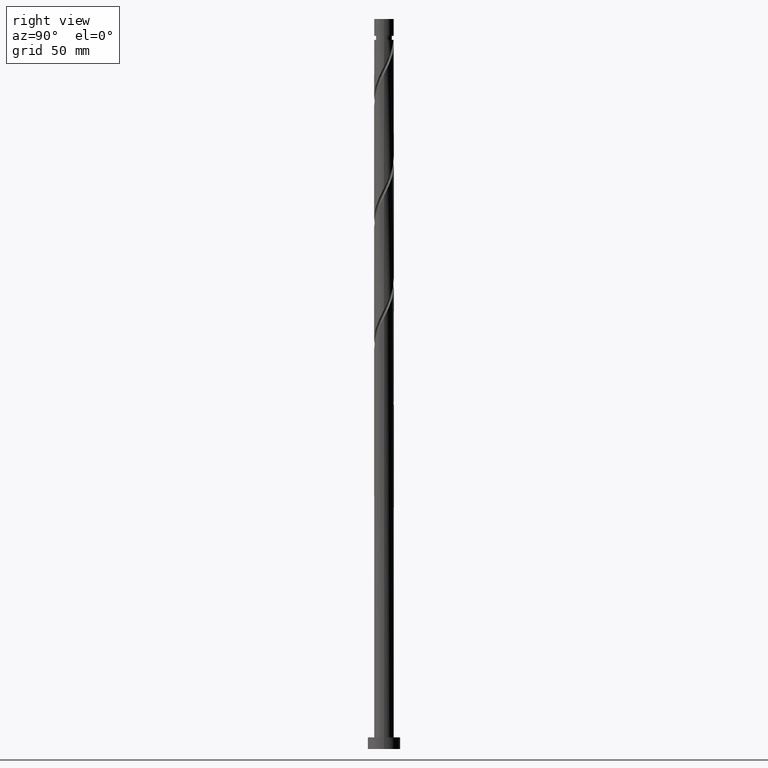
[diagram: clean part render]
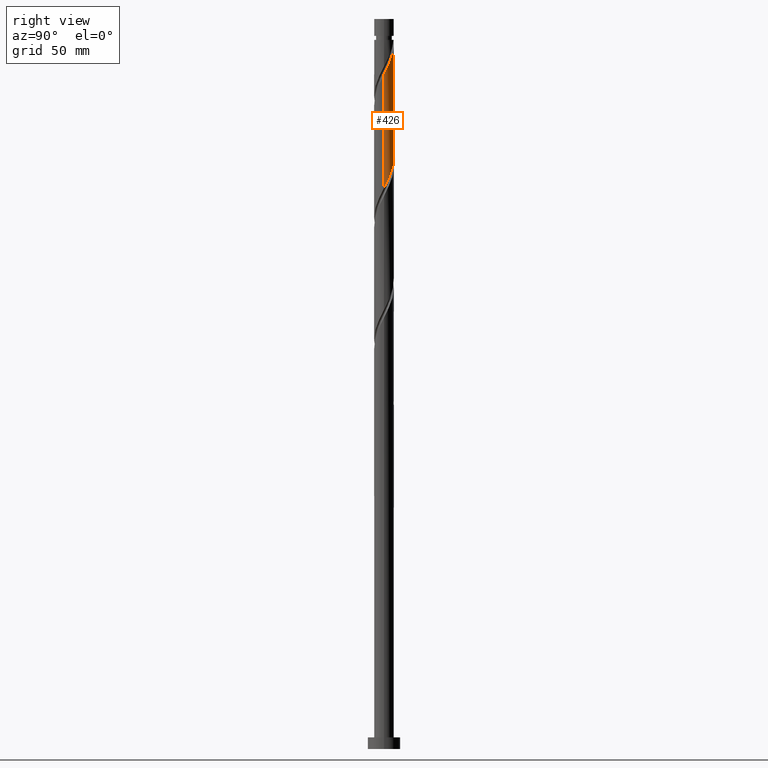
[diagram: same view with one face highlighted and labeled with its STEP entity id]
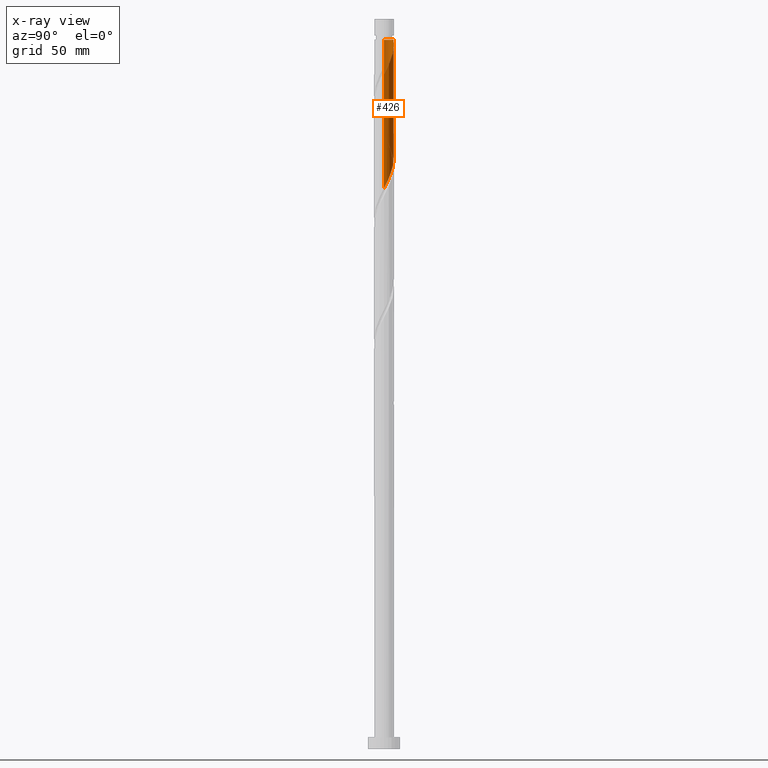
[diagram: x-ray of the same camera — body ghosted, the highlighted face saturated]
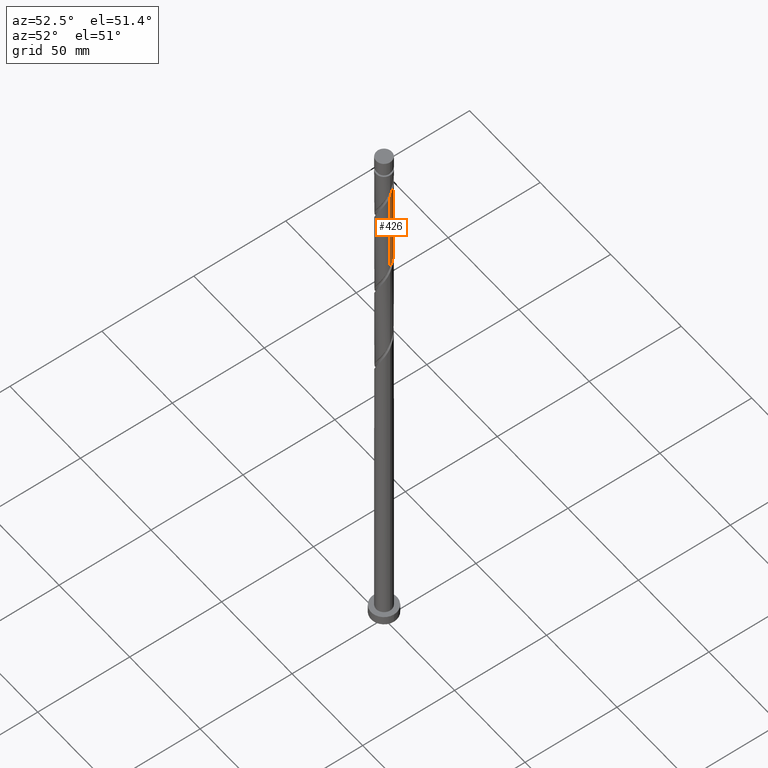
[diagram: same view with one face highlighted and labeled with its STEP entity id]
A machine part, right view. The second image highlights one B-rep face of the part: STEP entity #426.
The next image is the same camera in x-ray: the body ghosted, the highlighted face saturated — about 0% of this face is hidden behind the body in this view.
A second angle (auxiliary view) of the same face is appended — the face is thin or edge-on in the first view.
In plain terms, the highlighted cylindrical surface (edge-blend (fillet) strip) has radius 4.25 mm, axis along (-0, -0, -1).
Its self-contained STEP definition (entity closure, byte-faithful):
#3 = CARTESIAN_POINT ( 'NONE',  ( -2.729018282467836620, 3.258060652283240710, 260.9937838819315061 ) ) ;
#15 = CARTESIAN_POINT ( 'NONE',  ( -3.872380050524492301, 1.751334560927727102, 264.7437838819315061 ) ) ;
#21 = CIRCLE ( 'NONE', #1414, 4.249999999999974243 ) ;
#30 = VERTEX_POINT ( 'NONE', #563 ) ;
#42 = EDGE_LOOP ( 'NONE', ( #907, #793, #375, #1238, #468 ) ) ;
#114 = DIRECTION ( 'NONE',  ( -0.000000000000000000, -0.000000000000000000, -1.000000000000000000 ) ) ;
#134 = CARTESIAN_POINT ( 'NONE',  ( -2.361923010402210199, 3.565547165210043445, 260.0562838819315061 ) ) ;
#171 = CARTESIAN_POINT ( 'NONE',  ( 4.001728767771656869, 1.509295783997805840, 245.0562838819315346 ) ) ;
#179 = CARTESIAN_POINT ( 'NONE',  ( -0.8457393215406289189, 4.165000000000002700, 305.9937838819314493 ) ) ;
#207 = CARTESIAN_POINT ( 'NONE',  ( 1.935609397200013237, 3.783637966490855931, 300.3687838819315061 ) ) ;
#289 = CARTESIAN_POINT ( 'NONE',  ( 4.249999999999999112, 0.05113981295715052527, 242.1436636480626134 ) ) ;
#299 = VERTEX_POINT ( 'NONE', #709 ) ;
#303 = CARTESIAN_POINT ( 'NONE',  ( 0.3764565268566672507, 4.260291935747106074, 254.4312838819314777 ) ) ;
#314 = CARTESIAN_POINT ( 'NONE',  ( -4.069708064252891333, 1.315022116224591642, 265.6812838819314493 ) ) ;
#317 =( BOUNDED_CURVE ( )  B_SPLINE_CURVE ( 2, ( #1776, #1343, #717, #314, #15, #757, #612, #1322, #3, #134, #440, #601, #873, #1197, #899, #303, #1032, #1912, #1627, #725, #1312, #881, #574, #1500, #1662, #171, #592, #323, #1354, #289, #1466 ),
 .UNSPECIFIED., .F., .T. ) 
 B_SPLINE_CURVE_WITH_KNOTS ( ( 3, 2, 2, 2, 2, 2, 2, 2, 2, 2, 2, 2, 2, 2, 2, 3 ),
 ( 0.4295303401299219725, 0.4375000000000000000, 0.4464285714285714524, 0.4553571428571428492, 0.4642857142857143016, 0.4732142857142856984, 0.4821428571428571508, 0.4910714285714285476, 0.5000000000000000000, 0.5089285714285713969, 0.5178571428571429047, 0.5267857142857143016, 0.5357142857142856984, 0.5446428571428570953, 0.5535714285714286031, 0.5545303401299221946 ),
 .UNSPECIFIED. ) 
 CURVE ( )  GEOMETRIC_REPRESENTATION_ITEM ( )  RATIONAL_B_SPLINE_CURVE ( ( 0.9079949616362026354, 0.9039886423360656842, 0.9090909090909324863, 0.9033747362666074698, 0.9090909090909324863, 0.9033747362666074698, 0.9090909090909324863, 0.9033747362666074698, 0.9090909090909324863, 0.9033747362666074698, 0.9090909090909324863, 0.9033747362666074698, 0.9090909090909324863, 0.9033747362666074698, 0.9090909090909324863, 0.9033747362666074698, 0.9090909090909324863, 0.9033747362666074698, 0.9090909090909324863, 0.9033747362666074698, 0.9090909090909324863, 0.9033747362666074698, 0.9090909090909324863, 0.9033747362666074698, 0.9090909090909324863, 0.9033747362666074698, 0.9090909090909324863, 0.9033747362666074698, 0.9090909090909324863, 0.9084770030214741610, 0.9079949616362024134 ) ) 
 REPRESENTATION_ITEM ( '' )  );
#321 = CARTESIAN_POINT ( 'NONE',  ( 4.250000000000007105, 0.000000000000000000, 291.1942668040254034 ) ) ;
#323 = CARTESIAN_POINT ( 'NONE',  ( 4.237246980153082099, 0.5809861647134085816, 243.1812838819315061 ) ) ;
#331 = CARTESIAN_POINT ( 'NONE',  ( 3.872380050524500295, 1.751334560927728878, 294.7437838819314493 ) ) ;
#359 = VERTEX_POINT ( 'NONE', #1896 ) ;
#360 = CARTESIAN_POINT ( 'NONE',  ( 0.1022648189283734271, 4.248769457950102968, 304.1187838819313924 ) ) ;
#368 = EDGE_CURVE ( 'NONE', #359, #1397, #554, .T. ) ;
#375 = ORIENTED_EDGE ( 'NONE', *, *, #588, .F. ) ;
#426 = ADVANCED_FACE ( 'NONE', ( #1016 ), #1577, .T. ) ;
#440 = CARTESIAN_POINT ( 'NONE',  ( -1.935609397200007686, 3.783637966490849713, 259.1187838819315061 ) ) ;
#468 = ORIENTED_EDGE ( 'NONE', *, *, #1541, .T. ) ;
#475 = CARTESIAN_POINT ( 'NONE',  ( 4.165000000000006253, 0.8457393215406295850, 292.8687838819315630 ) ) ;
#546 = DIRECTION ( 'NONE',  ( -1.000000000000000000, 0.000000000000000000, 0.000000000000000000 ) ) ;
#554 = LINE ( 'NONE', #1147, #758 ) ;
#563 = CARTESIAN_POINT ( 'NONE',  ( -0.8457393215406289189, 4.165000000000002700, 305.9937838819314493 ) ) ;
#574 = CARTESIAN_POINT ( 'NONE',  ( 3.258060652283240710, 2.729018282467836176, 247.8687838819314777 ) ) ;
#588 = EDGE_CURVE ( 'NONE', #299, #1397, #317, .T. ) ;
#592 = CARTESIAN_POINT ( 'NONE',  ( 4.119487873962370372, 1.045140974355606822, 244.1187838819314209 ) ) ;
#601 = CARTESIAN_POINT ( 'NONE',  ( -1.509295783997806506, 4.001728767771656869, 258.1812838819315630 ) ) ;
#612 = CARTESIAN_POINT ( 'NONE',  ( -3.385582795664779265, 2.569110572493650047, 262.8687838819314493 ) ) ;
#630 = CARTESIAN_POINT ( 'NONE',  ( 2.361923010402216416, 3.565547165210048774, 299.4312838819314493 ) ) ;
#640 = CARTESIAN_POINT ( 'NONE',  ( -0.3764565268566899547, 4.260291935747114955, 305.0562838819315061 ) ) ;
#696 = CARTESIAN_POINT ( 'NONE',  ( -4.249999999999974243, 0.000000000000000000, 305.9937838819315061 ) ) ;
#709 = CARTESIAN_POINT ( 'NONE',  ( -4.249999999999999112, 1.865721690190771381E-15, 268.2933009598375520 ) ) ;
#717 = CARTESIAN_POINT ( 'NONE',  ( -4.164999999999997371, 0.8457393215406295850, 266.6187838819315061 ) ) ;
#721 = CARTESIAN_POINT ( 'NONE',  ( -4.250000000000000000, 0.000000000000000000, 315.0000000000000000 ) ) ;
#725 = CARTESIAN_POINT ( 'NONE',  ( 2.187647005630863006, 3.675052036796095045, 250.6812838819315061 ) ) ;
#757 = CARTESIAN_POINT ( 'NONE',  ( -3.675052036796095045, 2.187647005630862118, 263.8062838819315630 ) ) ;
#758 = VECTOR ( 'NONE', #1755, 1000.000000000000000 ) ;
#793 = ORIENTED_EDGE ( 'NONE', *, *, #368, .T. ) ;
#873 = CARTESIAN_POINT ( 'NONE',  ( -1.045140974355608154, 4.119487873962370372, 257.2437838819314493 ) ) ;
#881 = CARTESIAN_POINT ( 'NONE',  ( 2.950574139356437975, 3.096113554533460821, 248.8062838819315061 ) ) ;
#899 = CARTESIAN_POINT ( 'NONE',  ( -0.1022648189283712067, 4.248769457950094974, 255.3687838819315061 ) ) ;
#907 = ORIENTED_EDGE ( 'NONE', *, *, #1420, .F. ) ;
#967 = VERTEX_POINT ( 'NONE', #696 ) ;
#1016 = FACE_OUTER_BOUND ( 'NONE', #42, .T. ) ;
#1032 = CARTESIAN_POINT ( 'NONE',  ( 0.8457393215406305842, 4.164999999999997371, 253.4937838819315061 ) ) ;
#1082 = CARTESIAN_POINT ( 'NONE',  ( 1.509295783997810947, 4.001728767771663087, 301.3062838819315630 ) ) ;
#1112 = CARTESIAN_POINT ( 'NONE',  ( 0.000000000000000000, 0.000000000000000000, 305.9937838819315061 ) ) ;
#1147 = CARTESIAN_POINT ( 'NONE',  ( 4.250000000000000000, 5.204748896376250699E-16, 315.0000000000000000 ) ) ;
#1197 = CARTESIAN_POINT ( 'NONE',  ( -0.5809861647134095808, 4.237246980153082099, 256.3062838819315061 ) ) ;
#1205 = CARTESIAN_POINT ( 'NONE',  ( 4.069708064252899327, 1.315022116224592752, 293.8062838819315061 ) ) ;
#1216 = CARTESIAN_POINT ( 'NONE',  ( 3.675052036796103483, 2.187647005630865671, 295.6812838819315061 ) ) ;
#1238 = ORIENTED_EDGE ( 'NONE', *, *, #1868, .F. ) ;
#1279 = DIRECTION ( 'NONE',  ( -1.000000000000000000, 0.000000000000000000, 0.000000000000000000 ) ) ;
#1283 = CARTESIAN_POINT ( 'NONE',  ( 0.000000000000000000, 0.000000000000000000, 315.0000000000000000 ) ) ;
#1312 = CARTESIAN_POINT ( 'NONE',  ( 2.569110572493650047, 3.385582795664778821, 249.7437838819315346 ) ) ;
#1322 = CARTESIAN_POINT ( 'NONE',  ( -3.096113554533461265, 2.950574139356436643, 261.9312838819315061 ) ) ;
#1343 = CARTESIAN_POINT ( 'NONE',  ( -4.249999999999999112, 0.4271410714851646140, 267.4550298808739512 ) ) ;
#1354 = CARTESIAN_POINT ( 'NONE',  ( 4.248769457950094086, 0.1022648189283704850, 242.2437838819314209 ) ) ;
#1369 = CARTESIAN_POINT ( 'NONE',  ( 4.250000000000007994, 0.4271410714851609502, 292.0325378829891179 ) ) ;
#1376 = CARTESIAN_POINT ( 'NONE',  ( 4.249999999999999112, -3.015006251348286687E-15, 242.0433009598375236 ) ) ;
#1397 = VERTEX_POINT ( 'NONE', #1376 ) ;
#1414 = AXIS2_PLACEMENT_3D ( 'NONE', #1112, #1425, #1279 ) ;
#1420 = EDGE_CURVE ( 'NONE', #359, #30, #1654, .T. ) ;
#1425 = DIRECTION ( 'NONE',  ( -0.000000000000000000, -0.000000000000000000, -1.000000000000000000 ) ) ;
#1466 = CARTESIAN_POINT ( 'NONE',  ( 4.249999999999999112, -3.015006251348286687E-15, 242.0433009598375236 ) ) ;
#1500 = CARTESIAN_POINT ( 'NONE',  ( 3.565547165210043445, 2.361923010402209311, 246.9312838819315061 ) ) ;
#1534 = CARTESIAN_POINT ( 'NONE',  ( 2.729018282467842393, 3.258060652283245151, 298.4937838819315061 ) ) ;
#1541 = EDGE_CURVE ( 'NONE', #967, #30, #21, .T. ) ;
#1545 = CARTESIAN_POINT ( 'NONE',  ( 3.096113554533469703, 2.950574139356442416, 297.5562838819315061 ) ) ;
#1571 = VECTOR ( 'NONE', #114, 1000.000000000000000 ) ;
#1577 = CYLINDRICAL_SURFACE ( 'NONE', #1758, 4.250000000000000000 ) ;
#1610 = DIRECTION ( 'NONE',  ( -0.000000000000000000, -0.000000000000000000, -1.000000000000000000 ) ) ;
#1627 = CARTESIAN_POINT ( 'NONE',  ( 1.751334560927727990, 3.872380050524492301, 251.6187838819314777 ) ) ;
#1654 =( BOUNDED_CURVE ( )  B_SPLINE_CURVE ( 2, ( #321, #1369, #475, #1205, #331, #1216, #1823, #1545, #1534, #630, #207, #1082, #1697, #1833, #360, #640, #179 ),
 .UNSPECIFIED., .F., .T. ) 
 B_SPLINE_CURVE_WITH_KNOTS ( ( 3, 2, 2, 2, 2, 2, 2, 2, 3 ),
 ( 0.6795303401299219725, 0.6875000000000000000, 0.6964285714285715079, 0.7053571428571429047, 0.7142857142857145236, 0.7232142857142860315, 0.7321428571428575394, 0.7410714285714290472, 0.7500000000000004441 ),
 .UNSPECIFIED. ) 
 CURVE ( )  GEOMETRIC_REPRESENTATION_ITEM ( )  RATIONAL_B_SPLINE_CURVE ( ( 0.9079949616362108511, 0.9039886423360736778, 0.9090909090909405910, 0.9033747362666154634, 0.9090909090909405910, 0.9033747362666154634, 0.9090909090909405910, 0.9033747362666154634, 0.9090909090909405910, 0.9033747362666154634, 0.9090909090909405910, 0.9033747362666154634, 0.9090909090909405910, 0.9033747362666154634, 0.9090909090909405910, 0.9033747362666152414, 0.9090909090909408130 ) ) 
 REPRESENTATION_ITEM ( '' )  );
#1662 = CARTESIAN_POINT ( 'NONE',  ( 3.783637966490850157, 1.935609397200007242, 245.9937838819315346 ) ) ;
#1697 = CARTESIAN_POINT ( 'NONE',  ( 1.045140974355611485, 4.119487873962377478, 302.2437838819315061 ) ) ;
#1755 = DIRECTION ( 'NONE',  ( -0.000000000000000000, -0.000000000000000000, -1.000000000000000000 ) ) ;
#1758 = AXIS2_PLACEMENT_3D ( 'NONE', #1283, #1610, #546 ) ;
#1760 = LINE ( 'NONE', #721, #1571 ) ;
#1776 = CARTESIAN_POINT ( 'NONE',  ( -4.249999999999999112, 1.865721690190771381E-15, 268.2933009598375520 ) ) ;
#1823 = CARTESIAN_POINT ( 'NONE',  ( 3.385582795664786815, 2.569110572493653599, 296.6187838819315061 ) ) ;
#1833 = CARTESIAN_POINT ( 'NONE',  ( 0.5809861647134128004, 4.237246980153090981, 303.1812838819315630 ) ) ;
#1868 = EDGE_CURVE ( 'NONE', #967, #299, #1760, .T. ) ;
#1896 = CARTESIAN_POINT ( 'NONE',  ( 4.250000000000007105, 0.000000000000000000, 291.1942668040254034 ) ) ;
#1912 = CARTESIAN_POINT ( 'NONE',  ( 1.315022116224592752, 4.069708064252891333, 252.5562838819314777 ) ) ;